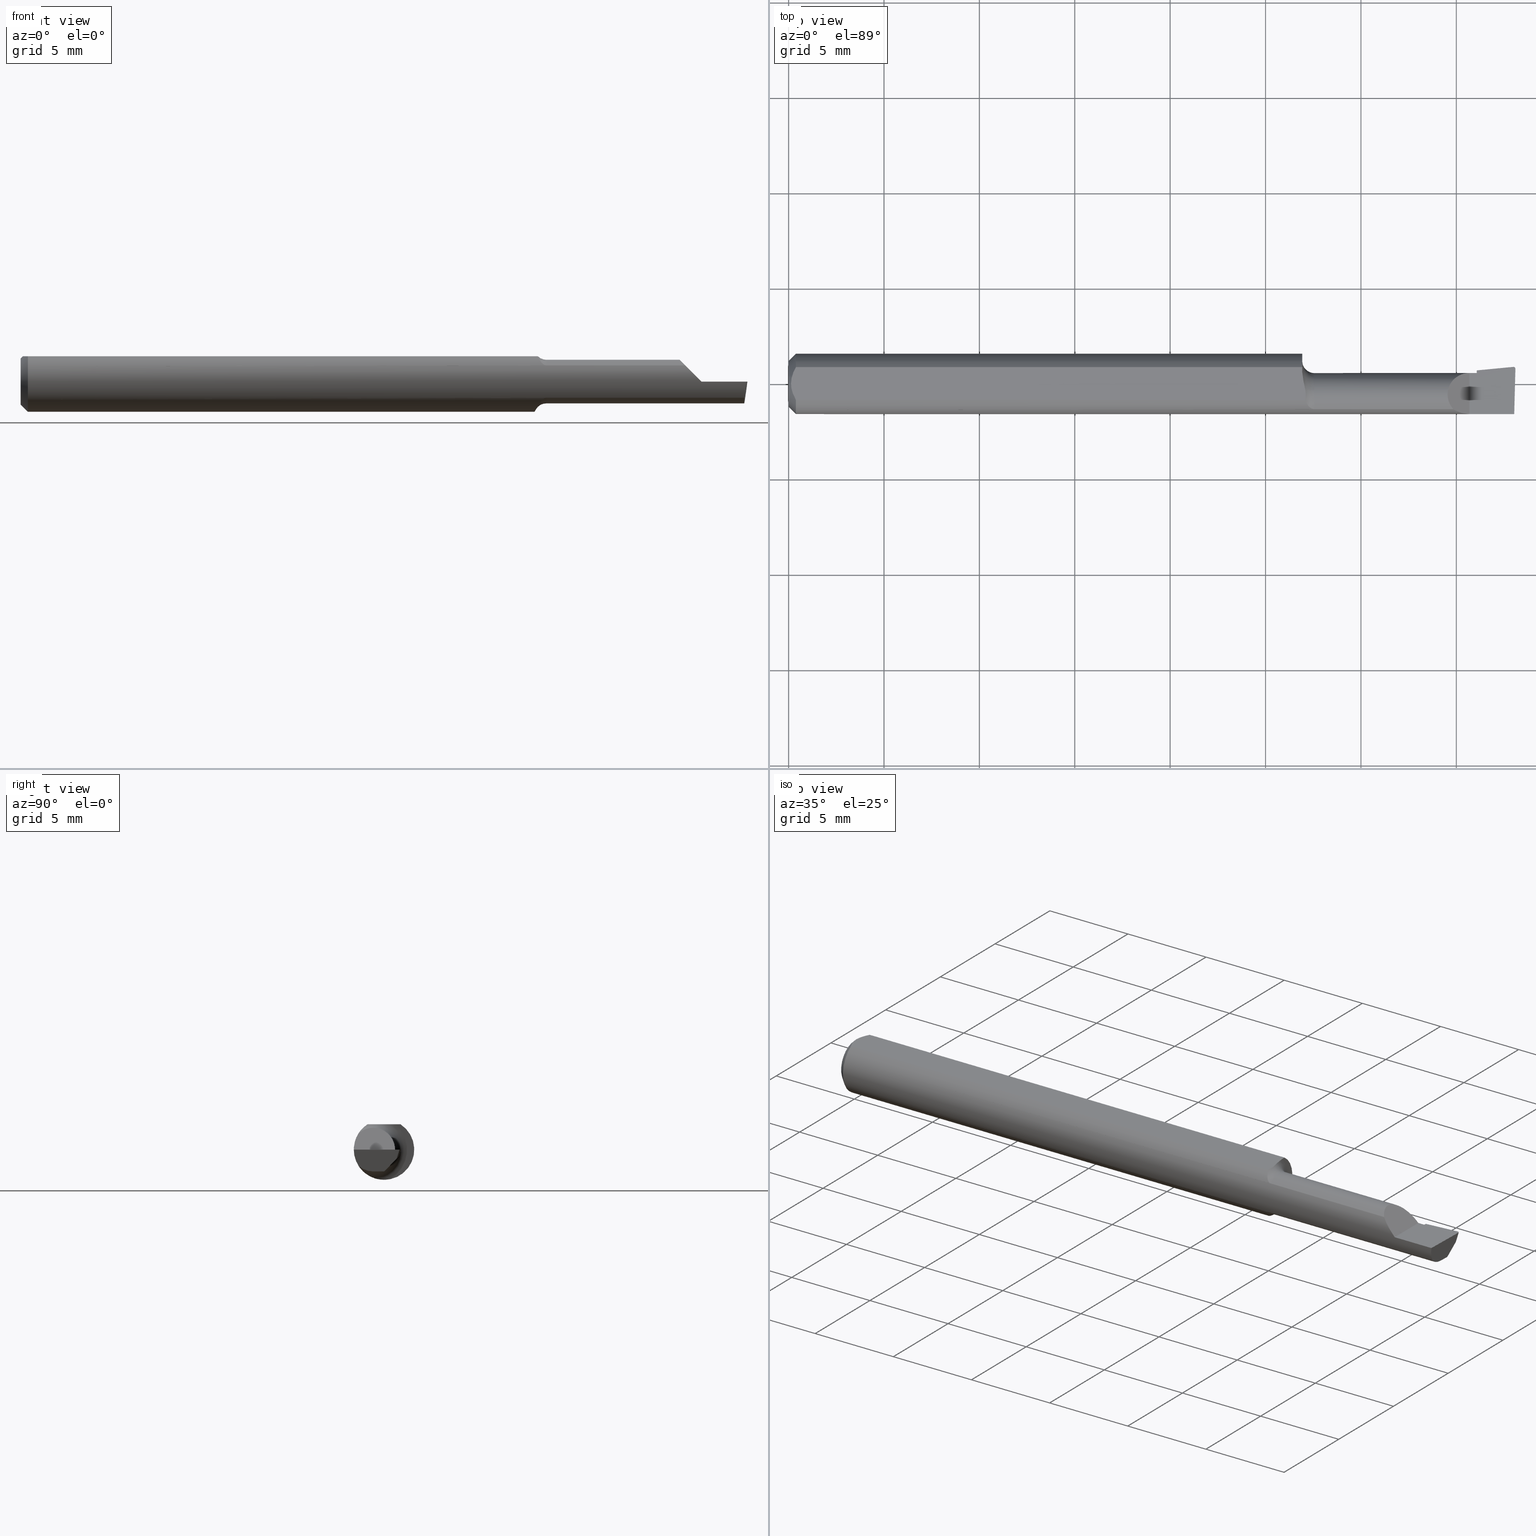
[diagram: canonical four-view strip — front | top / right | iso, engineering-drawing reading convention]
A machine part, canonical four-view strip (front | top / right | iso — engineering-drawing reading convention). The complete STEP part file that produces these views, byte-faithful:
ISO-10303-21;
HEADER;
FILE_DESCRIPTION (( 'STEP AP214' ),
    '1' );
FILE_NAME ('B100400R.STEP',
    '2020-05-08T22:21:55',
    ( '' ),
    ( '' ),
    'SwSTEP 2.0',
    'SolidWorks 2018',
    '' );
FILE_SCHEMA (( 'AUTOMOTIVE_DESIGN' ));
ENDSEC;

DATA;
#1 = DIRECTION ( 'NONE',  ( -1.000000000000000000, -0.0000000000000000000, -0.0000000000000000000 ) ) ;
#2 = CARTESIAN_POINT ( 'NONE',  ( 1.405000000000000249, -0.2500000000000000555, 1.163414459189985436E-17 ) ) ;
#3 = VECTOR ( 'NONE', #328, 39.37007874015748143 ) ;
#4 = AXIS2_PLACEMENT_3D ( 'NONE', #18, #413, #258 ) ;
#5 = DIRECTION ( 'NONE',  ( 0.0000000000000000000, 0.0000000000000000000, 1.000000000000000000 ) ) ;
#6 = CARTESIAN_POINT ( 'NONE',  ( 1.074327038483182450, -0.04799382633214958893, -0.03989142061000427314 ) ) ;
#7 = ORIENTED_EDGE ( 'NONE', *, *, #465, .F. ) ;
#8 = EDGE_CURVE ( 'NONE', #250, #97, #34, .T. ) ;
#9 = CARTESIAN_POINT ( 'NONE',  ( 1.060000000000000275, 0.01155624999999986177, -0.06126969549408177451 ) ) ;
#10 = ADVANCED_FACE ( 'NONE', ( #273 ), #222, .T. ) ;
#11 = EDGE_LOOP ( 'NONE', ( #221, #151, #168, #150, #40 ) ) ;
#12 = DIRECTION ( 'NONE',  ( 0.0000000000000000000, 0.9524855432518783971, -0.3045837978228226883 ) ) ;
#13 = CARTESIAN_POINT ( 'NONE',  ( 1.498384822753108914, 0.03264131821163464287, -0.01250862198832612682 ) ) ;
#14 = CONICAL_SURFACE ( 'NONE', #108, 0.06235000000000000264, 0.7853981633974594923 ) ;
#15 = CARTESIAN_POINT ( 'NONE',  ( 1.074073837407041987, -0.04761084945882111674, 0.04033650601908232020 ) ) ;
#16 = CARTESIAN_POINT ( 'NONE',  ( 1.420000000000000151, -0.02239999999999999630, 0.0000000000000000000 ) ) ;
#17 = AXIS2_PLACEMENT_3D ( 'NONE', #148, #1, #5 ) ;
#18 = CARTESIAN_POINT ( 'NONE',  ( 0.0000000000000000000, 0.0000000000000000000, 0.0000000000000000000 ) ) ;
#19 = FACE_OUTER_BOUND ( 'NONE', #152, .T. ) ;
#20 = DIRECTION ( 'NONE',  ( 0.0000000000000000000, -7.598598113218357399E-17, -1.000000000000000000 ) ) ;
#21 = AXIS2_PLACEMENT_3D ( 'NONE', #450, #36, #610 ) ;
#22 = VECTOR ( 'NONE', #473, 39.37007874015748854 ) ;
#23 = CARTESIAN_POINT ( 'NONE',  ( 0.004999999999989931769, 7.898418181085889318E-16, 0.05235000000000000070 ) ) ;
#24 = EDGE_CURVE ( 'NONE', #335, #188, #344, .T. ) ;
#25 = CARTESIAN_POINT ( 'NONE',  ( 0.01500000000000185039, -0.03386738844380016850, 0.05235000000000000070 ) ) ;
#26 = CARTESIAN_POINT ( 'NONE',  ( 1.371638225962093838, -0.05267366071428578739, 0.03336177403790611951 ) ) ;
#27 = CARTESIAN_POINT ( 'NONE',  ( 0.01216137397042175820, -0.02864146636719541034, 0.05235000000000000070 ) ) ;
#28 = ORIENTED_EDGE ( 'NONE', *, *, #59, .T. ) ;
#29 =( NAMED_UNIT ( * ) PLANE_ANGLE_UNIT ( ) SI_UNIT ( $, .RADIAN. ) );
#30 = B_SPLINE_CURVE_WITH_KNOTS ( 'NONE', 3,
 ( #589, #276, #435, #63, #378, #6, #324, #631, #272, #585, #223, #543, #162, #482 ),
 .UNSPECIFIED., .F., .F.,
 ( 4, 2, 2, 2, 2, 2, 4 ),
 ( 1.960001601931791046E-07, 0.0001315703184465652758, 0.0002629446367329374076, 0.0005256932733056817256, 0.001051190546451170795, 0.001576687819596659648, 0.002102185092742148934 ),
 .UNSPECIFIED. ) ;
#31 = CARTESIAN_POINT ( 'NONE',  ( 1.494045589437458910, 0.03076786057889415241, -0.01400903864505088046 ) ) ;
#32 = ORIENTED_EDGE ( 'NONE', *, *, #629, .F. ) ;
#33 = FILL_AREA_STYLE_COLOUR ( '', #505 ) ;
#34 =( BOUNDED_CURVE ( )  B_SPLINE_CURVE ( 3, ( #363, #670, #327, #48 ),
 .UNSPECIFIED., .F., .F. ) 
 B_SPLINE_CURVE_WITH_KNOTS ( ( 4, 4 ),
 ( 1.953092279228398453, 3.511516179717623309 ),
 .UNSPECIFIED. ) 
 CURVE ( )  GEOMETRIC_REPRESENTATION_ITEM ( )  RATIONAL_B_SPLINE_CURVE ( ( 1.000000000000000000, 0.8076450242550488046, 0.8076450242550488046, 1.000000000000000000 ) ) 
 REPRESENTATION_ITEM ( '' )  );
#35 = CARTESIAN_POINT ( 'NONE',  ( 0.0000000000000000000, -0.03386738844375222768, 0.05234999999999997988 ) ) ;
#36 = DIRECTION ( 'NONE',  ( -1.000000000000000000, -5.691349986800549142E-18, 0.0000000000000000000 ) ) ;
#37 =( CONVERSION_BASED_UNIT ( 'INCH', #64 ) LENGTH_UNIT ( ) NAMED_UNIT ( #661 ) );
#38 = CIRCLE ( 'NONE', #145, 0.04504999999999999283 ) ;
#39 =( GEOMETRIC_REPRESENTATION_CONTEXT ( 3 ) GLOBAL_UNCERTAINTY_ASSIGNED_CONTEXT ( ( #278 ) ) GLOBAL_UNIT_ASSIGNED_CONTEXT ( ( #634, #29, #657 ) ) REPRESENTATION_CONTEXT ( 'NONE', 'WORKASPACE' ) );
#40 = ORIENTED_EDGE ( 'NONE', *, *, #563, .T. ) ;
#41 = VECTOR ( 'NONE', #346, 39.37007874015748143 ) ;
#42 = FACE_OUTER_BOUND ( 'NONE', #296, .T. ) ;
#43 = FILL_AREA_STYLE ('',( #33 ) ) ;
#44 = CARTESIAN_POINT ( 'NONE',  ( 1.510364203804932304, 0.03234793331252790866, -0.01400000000000000376 ) ) ;
#45 = PRODUCT_DEFINITION ( 'UNKNOWN', '', #84, #406 ) ;
#46 = ORIENTED_EDGE ( 'NONE', *, *, #571, .F. ) ;
#47 = ORIENTED_EDGE ( 'NONE', *, *, #429, .F. ) ;
#48 = CARTESIAN_POINT ( 'NONE',  ( 1.496007920276498648, 0.03524764111161341612, 0.0000000000000000000 ) ) ;
#49 = EDGE_CURVE ( 'NONE', #294, #342, #85, .T. ) ;
#50 = CARTESIAN_POINT ( 'NONE',  ( 1.420000000000000151, 0.02265000000000000346, 1.836970198721031660E-16 ) ) ;
#51 = VECTOR ( 'NONE', #203, 39.37007874015748854 ) ;
#52 = VECTOR ( 'NONE', #402, 39.37007874015748854 ) ;
#53 =( BOUNDED_CURVE ( )  B_SPLINE_CURVE ( 3, ( #539, #562, #31, #112 ),
 .UNSPECIFIED., .F., .F. ) 
 B_SPLINE_CURVE_WITH_KNOTS ( ( 4, 4 ),
 ( 3.064097098354602089, 3.156599629463157086 ),
 .UNSPECIFIED. ) 
 CURVE ( )  GEOMETRIC_REPRESENTATION_ITEM ( )  RATIONAL_B_SPLINE_CURVE ( ( 1.000000000000000000, 0.9992870672494015283, 0.9992870672494015283, 1.000000000000000000 ) ) 
 REPRESENTATION_ITEM ( '' )  );
#54 = ORIENTED_EDGE ( 'NONE', *, *, #143, .F. ) ;
#55 = FACE_OUTER_BOUND ( 'NONE', #209, .T. ) ;
#56 = CARTESIAN_POINT ( 'NONE',  ( 1.500000000000000222, -0.2500000000000000555, 0.0000000000000000000 ) ) ;
#57 = AXIS2_PLACEMENT_3D ( 'NONE', #617, #523, #520 ) ;
#58 = DIRECTION ( 'NONE',  ( 1.000000000000000000, 0.0000000000000000000, 0.0000000000000000000 ) ) ;
#59 = EDGE_CURVE ( 'NONE', #97, #104, #197, .T. ) ;
#60 = ORIENTED_EDGE ( 'NONE', *, *, #49, .F. ) ;
#61 = DIRECTION ( 'NONE',  ( -0.7071067811865432429, 0.0000000000000000000, -0.7071067811865517916 ) ) ;
#62 = VERTEX_POINT ( 'NONE', #357 ) ;
#63 = CARTESIAN_POINT ( 'NONE',  ( 1.078775713346482146, -0.05116520334387903574, -0.03564627526859109191 ) ) ;
#64 = LENGTH_MEASURE_WITH_UNIT ( LENGTH_MEASURE( 0.02539999999999999897 ), #660 );
#65 = ADVANCED_FACE ( 'NONE', ( #42 ), #579, .F. ) ;
#66 = DIRECTION ( 'NONE',  ( 1.000000000000000000, 5.691349986800549142E-18, 0.0000000000000000000 ) ) ;
#67 = CARTESIAN_POINT ( 'NONE',  ( 0.01500000000000185039, -0.03386738844380016850, 0.05235000000000000070 ) ) ;
#68 = DIRECTION ( 'NONE',  ( 0.0000000000000000000, -1.000000000000000000, 0.0000000000000000000 ) ) ;
#69 = ORIENTED_EDGE ( 'NONE', *, *, #484, .F. ) ;
#70 = CARTESIAN_POINT ( 'NONE',  ( 1.252500000000000169, -0.05267366071428577351, -0.03336177403790612644 ) ) ;
#71 = ORIENTED_EDGE ( 'NONE', *, *, #376, .F. ) ;
#72 = DIRECTION ( 'NONE',  ( 1.000000000000000000, 5.691349986800549142E-18, 0.0000000000000000000 ) ) ;
#73 = ORIENTED_EDGE ( 'NONE', *, *, #271, .F. ) ;
#74 = AXIS2_PLACEMENT_3D ( 'NONE', #288, #596, #234 ) ;
#75 = VECTOR ( 'NONE', #504, 39.37007874015748143 ) ;
#76 = UNCERTAINTY_MEASURE_WITH_UNIT (LENGTH_MEASURE( 1.000000000000000082E-05 ), #37, 'distance_accuracy_value', 'NONE');
#77 = DIRECTION ( 'NONE',  ( 0.0000000000000000000, -1.000000000000000000, 1.776356839400250465E-15 ) ) ;
#78 = ADVANCED_FACE ( 'NONE', ( #268 ), #88, .T. ) ;
#79 = DIRECTION ( 'NONE',  ( 0.1219104985252538326, 0.0000000000000000000, 0.9925410975618711440 ) ) ;
#80 = CARTESIAN_POINT ( 'NONE',  ( 1.060000000000000275, -0.02239999999999999977, 0.0000000000000000000 ) ) ;
#81 = EDGE_LOOP ( 'NONE', ( #628, #236, #565, #69, #408, #614 ) ) ;
#82 = VERTEX_POINT ( 'NONE', #208 ) ;
#83 = CARTESIAN_POINT ( 'NONE',  ( 1.066182189689074633, -0.03386738844375222074, 0.05235000000000000070 ) ) ;
#84 = PRODUCT_DEFINITION_FORMATION_WITH_SPECIFIED_SOURCE ( 'ANY', '', #131, .NOT_KNOWN. ) ;
#85 = LINE ( 'NONE', #480, #51 ) ;
#86 = CARTESIAN_POINT ( 'NONE',  ( 1.420000000000000151, 0.02794687614419681318, 0.0000000000000000000 ) ) ;
#87 = DIRECTION ( 'NONE',  ( 0.02617694830784707966, 0.9996573249755579260, -3.158139334220691399E-18 ) ) ;
#88 = CYLINDRICAL_SURFACE ( 'NONE', #201, 0.06235000000000000264 ) ;
#89 = SURFACE_SIDE_STYLE ('',( #358 ) ) ;
#90 = PRODUCT_DEFINITION_SHAPE ( 'NONE', 'NONE',  #45 ) ;
#91 = ORIENTED_EDGE ( 'NONE', *, *, #415, .F. ) ;
#92 = CARTESIAN_POINT ( 'NONE',  ( 1.485933158780053276, 0.006882228698993234604, -0.07557081307649682334 ) ) ;
#93 = VERTEX_POINT ( 'NONE', #259 ) ;
#94 = FACE_OUTER_BOUND ( 'NONE', #81, .T. ) ;
#95 = ORIENTED_EDGE ( 'NONE', *, *, #499, .F. ) ;
#96 = VERTEX_POINT ( 'NONE', #414 ) ;
#97 = VERTEX_POINT ( 'NONE', #161 ) ;
#98 = ORIENTED_EDGE ( 'NONE', *, *, #242, .T. ) ;
#99 = CARTESIAN_POINT ( 'NONE',  ( 0.0000000000000000000, 0.03386738844375223462, 0.05234999999999997988 ) ) ;
#100 = EDGE_CURVE ( 'NONE', #481, #93, #668, .T. ) ;
#101 = VERTEX_POINT ( 'NONE', #231 ) ;
#102 =( NAMED_UNIT ( * ) SI_UNIT ( $, .STERADIAN. ) SOLID_ANGLE_UNIT ( ) );
#103 = CARTESIAN_POINT ( 'NONE',  ( 1.496461277308439808, 0.03065349357661050975, -0.01436668378927335489 ) ) ;
#104 = VERTEX_POINT ( 'NONE', #257 ) ;
#105 = PLANE ( 'NONE',  #411 ) ;
#106 = VECTOR ( 'NONE', #196, 39.37007874015748143 ) ;
#107 = DIRECTION ( 'NONE',  ( -5.691349986800549142E-18, 1.000000000000000000, 0.0000000000000000000 ) ) ;
#108 = AXIS2_PLACEMENT_3D ( 'NONE', #381, #58, #509 ) ;
#109 = CARTESIAN_POINT ( 'NONE',  ( 1.494656860756163663, -0.05903713403021957490, -0.02331472336167221548 ) ) ;
#110 = LINE ( 'NONE', #2, #663 ) ;
#111 = DIRECTION ( 'NONE',  ( 0.0000000000000000000, 0.0000000000000000000, 1.000000000000000000 ) ) ;
#112 = CARTESIAN_POINT ( 'NONE',  ( 1.494167560590867749, 0.03076208604347176190, -0.01402709660331437347 ) ) ;
#113 = CARTESIAN_POINT ( 'NONE',  ( 1.420000000000000151, -0.2500000000000000555, 9.797174393178828616E-18 ) ) ;
#114 = CARTESIAN_POINT ( 'NONE',  ( 1.405000000000000249, -0.2500000000000000555, 1.163414459189985436E-17 ) ) ;
#115 = PRODUCT_RELATED_PRODUCT_CATEGORY ( 'part', '', ( #131 ) ) ;
#116 = CARTESIAN_POINT ( 'NONE',  ( 1.493589448587071544, -0.05267366071428577351, -0.03336177403790612644 ) ) ;
#117 = ADVANCED_FACE ( 'NONE', ( #574 ), #269, .T. ) ;
#118 = VERTEX_POINT ( 'NONE', #9 ) ;
#119 = ORIENTED_EDGE ( 'NONE', *, *, #179, .T. ) ;
#120 = ADVANCED_FACE ( 'NONE', ( #303 ), #575, .T. ) ;
#121 = CARTESIAN_POINT ( 'NONE',  ( 1.085000000000000187, -0.02239999999999999977, 0.0000000000000000000 ) ) ;
#122 = CIRCLE ( 'NONE', #391, 0.06235000000000000264 ) ;
#123 = DIRECTION ( 'NONE',  ( -1.000000000000000000, -5.691349986800549142E-18, -0.0000000000000000000 ) ) ;
#124 = CARTESIAN_POINT ( 'NONE',  ( 0.0000000000000000000, 0.0000000000000000000, -0.04734999999999965625 ) ) ;
#125 = ORIENTED_EDGE ( 'NONE', *, *, #371, .F. ) ;
#126 = EDGE_LOOP ( 'NONE', ( #405, #240 ) ) ;
#127 = CARTESIAN_POINT ( 'NONE',  ( 1.495883579913029671, 0.03524764111161342306, 8.532676796529436165E-18 ) ) ;
#128 = AXIS2_PLACEMENT_3D ( 'NONE', #165, #123, #374 ) ;
#129 = CARTESIAN_POINT ( 'NONE',  ( 1.420000000000000151, 0.003839959974368483461, -0.03441620828959359585 ) ) ;
#130 = CARTESIAN_POINT ( 'NONE',  ( 1.067516889514667611, -0.02435447415594420989, 0.05235000000000000070 ) ) ;
#131 = PRODUCT ( 'B100400R', 'B100400R', '', ( #502 ) ) ;
#132 = EDGE_CURVE ( 'NONE', #62, #82, #401, .T. ) ;
#133 = CARTESIAN_POINT ( 'NONE',  ( 1.496007920276498648, 0.03524764111161341612, 0.0000000000000000000 ) ) ;
#134 = CARTESIAN_POINT ( 'NONE',  ( 1.420000000000000151, -0.02239999999999999630, -0.04504999999999998589 ) ) ;
#135 = ORIENTED_EDGE ( 'NONE', *, *, #484, .T. ) ;
#136 = LINE ( 'NONE', #314, #600 ) ;
#137 = CARTESIAN_POINT ( 'NONE',  ( 1.420000000000000151, 0.003839959974368483461, -0.03441620828959359585 ) ) ;
#138 = CARTESIAN_POINT ( 'NONE',  ( 1.497690526998707305, 0.02804183703948721212, -0.01718068703854500057 ) ) ;
#139 = VERTEX_POINT ( 'NONE', #536 ) ;
#140 = DIRECTION ( 'NONE',  ( 5.691349986800549142E-18, -1.000000000000000000, 0.0000000000000000000 ) ) ;
#141 = ORIENTED_EDGE ( 'NONE', *, *, #205, .F. ) ;
#142 =( NAMED_UNIT ( * ) PLANE_ANGLE_UNIT ( ) SI_UNIT ( $, .RADIAN. ) );
#143 = EDGE_CURVE ( 'NONE', #531, #436, #136, .T. ) ;
#144 = VECTOR ( 'NONE', #72, 39.37007874015748143 ) ;
#145 = AXIS2_PLACEMENT_3D ( 'NONE', #593, #233, #551 ) ;
#146 = FACE_OUTER_BOUND ( 'NONE', #204, .T. ) ;
#147 = CARTESIAN_POINT ( 'NONE',  ( 1.494167560590867749, 0.03076208604347176190, -0.01402709660331437347 ) ) ;
#148 = CARTESIAN_POINT ( 'NONE',  ( 0.01500000000000000465, 0.0000000000000000000, 0.0000000000000000000 ) ) ;
#149 = ORIENTED_EDGE ( 'NONE', *, *, #376, .T. ) ;
#150 = ORIENTED_EDGE ( 'NONE', *, *, #24, .T. ) ;
#151 = ORIENTED_EDGE ( 'NONE', *, *, #534, .F. ) ;
#152 = EDGE_LOOP ( 'NONE', ( #500, #537, #649, #260 ) ) ;
#153 =( BOUNDED_CURVE ( )  B_SPLINE_CURVE ( 3, ( #116, #158, #430, #370 ),
 .UNSPECIFIED., .F., .T. ) 
 B_SPLINE_CURVE_WITH_KNOTS ( ( 4, 4 ),
 ( 5.756326750816665339, 6.493234751459597831 ),
 .UNSPECIFIED. ) 
 CURVE ( )  GEOMETRIC_REPRESENTATION_ITEM ( )  RATIONAL_B_SPLINE_CURVE ( ( 1.000000000000000000, 0.9552568590268901705, 0.9552568590268901705, 1.000000000000000000 ) ) 
 REPRESENTATION_ITEM ( '' )  );
#154 = LINE ( 'NONE', #553, #444 ) ;
#155 = CARTESIAN_POINT ( 'NONE',  ( 0.01500000000000000465, 0.0000000000000000000, 0.0000000000000000000 ) ) ;
#156 = VECTOR ( 'NONE', #87, 39.37007874015748854 ) ;
#157 = AXIS2_PLACEMENT_3D ( 'NONE', #334, #194, #569 ) ;
#158 = CARTESIAN_POINT ( 'NONE',  ( 1.492874371667013866, -0.04428776192107813231, -0.04097143695815294584 ) ) ;
#159 = AXIS2_PLACEMENT_3D ( 'NONE', #609, #643, #607 ) ;
#160 = EDGE_CURVE ( 'NONE', #266, #355, #398, .T. ) ;
#161 = CARTESIAN_POINT ( 'NONE',  ( 1.496007920276498648, 0.03524764111161341612, 0.0000000000000000000 ) ) ;
#162 = CARTESIAN_POINT ( 'NONE',  ( 1.059999999999996056, 0.004792881695547039807, -0.06254535345742004426 ) ) ;
#163 = VERTEX_POINT ( 'NONE', #50 ) ;
#164 = ADVANCED_FACE ( 'NONE', ( #247 ), #105, .T. ) ;
#165 = CARTESIAN_POINT ( 'NONE',  ( 1.085000000000000187, -0.02239999999999999630, 0.0000000000000000000 ) ) ;
#166 = EDGE_LOOP ( 'NONE', ( #353, #254, #611, #418, #141, #605, #483, #547 ) ) ;
#167 = DIRECTION ( 'NONE',  ( -1.000000000000000000, -5.691349986800549142E-18, -0.0000000000000000000 ) ) ;
#168 = ORIENTED_EDGE ( 'NONE', *, *, #308, .T. ) ;
#169 = SHAPE_DEFINITION_REPRESENTATION ( #90, #472 ) ;
#170 = DIRECTION ( 'NONE',  ( -0.1240019227988993777, -0.3022330132596629526, -0.9451342385281363834 ) ) ;
#171 = CARTESIAN_POINT ( 'NONE',  ( 1.381685276638327631, -0.05903713403021959572, 0.02331472336167217385 ) ) ;
#172 = CARTESIAN_POINT ( 'NONE',  ( 0.0000000000000000000, -0.02240000000000000324, 0.0000000000000000000 ) ) ;
#173 = CARTESIAN_POINT ( 'NONE',  ( 1.420000000000000151, 0.02442187865123204502, -0.01147666661066421706 ) ) ;
#174 = ORIENTED_EDGE ( 'NONE', *, *, #524, .T. ) ;
#175 = VECTOR ( 'NONE', #170, 39.37007874015748854 ) ;
#176 = DIRECTION ( 'NONE',  ( -1.000000000000000000, 5.691349986800548372E-18, -0.0000000000000000000 ) ) ;
#177 = CIRCLE ( 'NONE', #74, 0.06235000000000000264 ) ;
#178 = CARTESIAN_POINT ( 'NONE',  ( -2.563953169053420290E-19, 0.02264999999999996183, 1.836970198721030427E-16 ) ) ;
#179 = EDGE_CURVE ( 'NONE', #487, #294, #184, .T. ) ;
#180 = CARTESIAN_POINT ( 'NONE',  ( 1.495759144559519527, 0.03524165206609282397, 8.547915732267098835E-18 ) ) ;
#181 = AXIS2_PLACEMENT_3D ( 'NONE', #545, #167, #485 ) ;
#182 = LINE ( 'NONE', #35, #41 ) ;
#183 = CARTESIAN_POINT ( 'NONE',  ( 1.495634880358085672, 0.03522968678441162904, 5.345729797365519968E-19 ) ) ;
#184 = LINE ( 'NONE', #470, #22 ) ;
#185 = CARTESIAN_POINT ( 'NONE',  ( 0.01218518006020415795, 0.02868529347538067639, 0.05235000000000000070 ) ) ;
#186 = DIRECTION ( 'NONE',  ( 1.000000000000000000, 0.0000000000000000000, 0.0000000000000000000 ) ) ;
#187 = CARTESIAN_POINT ( 'NONE',  ( 1.063943373083574784, -0.0009488278625737072997, 0.05234999999999998682 ) ) ;
#188 = VERTEX_POINT ( 'NONE', #67 ) ;
#189 = DIRECTION ( 'NONE',  ( -1.000000000000000000, -0.0000000000000000000, -0.0000000000000000000 ) ) ;
#190 = APPLICATION_PROTOCOL_DEFINITION ( 'draft international standard', 'automotive_design', 1998, #507 ) ;
#191 = ORIENTED_EDGE ( 'NONE', *, *, #599, .T. ) ;
#192 = DIRECTION ( 'NONE',  ( 0.0000000000000000000, -1.000000000000000000, 0.0000000000000000000 ) ) ;
#193 = CARTESIAN_POINT ( 'NONE',  ( 1.499880855614015962, 0.03110005946548963576, 2.797005382439469068E-20 ) ) ;
#194 = DIRECTION ( 'NONE',  ( 2.429359850419095604E-34, 4.268512490100411895E-17, 1.000000000000000000 ) ) ;
#195 = DIRECTION ( 'NONE',  ( -1.000000000000000000, -5.691349986800549142E-18, -0.0000000000000000000 ) ) ;
#196 = DIRECTION ( 'NONE',  ( 1.000000000000000000, 5.691349986800549142E-18, 0.0000000000000000000 ) ) ;
#197 = LINE ( 'NONE', #263, #175 ) ;
#198 = LINE ( 'NONE', #137, #52 ) ;
#199 =( CONVERSION_BASED_UNIT ( 'INCH', #395 ) LENGTH_UNIT ( ) NAMED_UNIT ( #513 ) );
#200 = LINE ( 'NONE', #248, #156 ) ;
#201 = AXIS2_PLACEMENT_3D ( 'NONE', #218, #377, #380 ) ;
#202 = AXIS2_PLACEMENT_3D ( 'NONE', #555, #20, #243 ) ;
#203 = DIRECTION ( 'NONE',  ( -0.1240019227988993777, -0.3022330132596629526, -0.9451342385281363834 ) ) ;
#204 = EDGE_LOOP ( 'NONE', ( #369, #262, #219, #621 ) ) ;
#205 = EDGE_CURVE ( 'NONE', #163, #487, #300, .T. ) ;
#206 = VERTEX_POINT ( 'NONE', #420 ) ;
#207 = EDGE_LOOP ( 'NONE', ( #317, #323, #214, #675, #279, #95, #191, #672, #91, #529, #73, #71 ) ) ;
#208 = CARTESIAN_POINT ( 'NONE',  ( 1.497433779686219379, -0.06235000000000005121, 3.231995301756449018E-19 ) ) ;
#209 = EDGE_LOOP ( 'NONE', ( #588, #98 ) ) ;
#210 = ORIENTED_EDGE ( 'NONE', *, *, #541, .T. ) ;
#211 = EDGE_CURVE ( 'NONE', #62, #206, #459, .T. ) ;
#212 = CIRCLE ( 'NONE', #159, 0.04734999999999965625 ) ;
#213 = AXIS2_PLACEMENT_3D ( 'NONE', #121, #440, #68 ) ;
#214 = ORIENTED_EDGE ( 'NONE', *, *, #284, .T. ) ;
#215 = ORIENTED_EDGE ( 'NONE', *, *, #100, .F. ) ;
#216 = PLANE ( 'NONE',  #627 ) ;
#217 = CARTESIAN_POINT ( 'NONE',  ( 1.420000000000000151, 0.02364685013702385111, -0.01400000000000000376 ) ) ;
#218 = CARTESIAN_POINT ( 'NONE',  ( 0.0000000000000000000, 0.0000000000000000000, 0.0000000000000000000 ) ) ;
#219 = ORIENTED_EDGE ( 'NONE', *, *, #341, .F. ) ;
#220 = EDGE_LOOP ( 'NONE', ( #373, #616, #424, #630, #516, #576 ) ) ;
#221 = ORIENTED_EDGE ( 'NONE', *, *, #253, .F. ) ;
#222 = PLANE ( 'NONE',  #57 ) ;
#223 = CARTESIAN_POINT ( 'NONE',  ( 1.061648092746324767, -0.01564147840104310530, -0.06074236086770339743 ) ) ;
#224 = ADVANCED_FACE ( 'NONE', ( #442 ), #416, .F. ) ;
#225 = PRESENTATION_STYLE_ASSIGNMENT (( #345 ) ) ;
#226 = PLANE ( 'NONE',  #427 ) ;
#227 = ADVANCED_FACE ( 'NONE', ( #604 ), #583, .F. ) ;
#228 = LENGTH_MEASURE_WITH_UNIT ( LENGTH_MEASURE( 0.02539999999999999897 ), #385 );
#229 = ORIENTED_EDGE ( 'NONE', *, *, #49, .T. ) ;
#230 = MANIFOLD_SOLID_BREP ( '501D13B4-941D-4ba7-A33A-58F253D3E656-GAAFaceID16', #287 ) ;
#231 = CARTESIAN_POINT ( 'NONE',  ( 1.371638225962093838, -0.05267366071428578739, 0.03336177403790611951 ) ) ;
#232 =( BOUNDED_CURVE ( )  B_SPLINE_CURVE ( 3, ( #133, #127, #180, #183 ),
 .UNSPECIFIED., .F., .T. ) 
 B_SPLINE_CURVE_WITH_KNOTS ( ( 4, 4 ),
 ( 3.511516179717623309, 3.604018710826139671 ),
 .UNSPECIFIED. ) 
 CURVE ( )  GEOMETRIC_REPRESENTATION_ITEM ( )  RATIONAL_B_SPLINE_CURVE ( ( 1.000000000000000000, 0.9992870672494020834, 0.9992870672494020834, 1.000000000000000000 ) ) 
 REPRESENTATION_ITEM ( '' )  );
#233 = DIRECTION ( 'NONE',  ( -1.000000000000000000, -5.691349986800549142E-18, -0.0000000000000000000 ) ) ;
#234 = DIRECTION ( 'NONE',  ( 0.0000000000000000000, 1.000000000000000000, 0.0000000000000000000 ) ) ;
#235 = B_SPLINE_CURVE_WITH_KNOTS ( 'NONE', 3,
 ( #249, #568, #241, #501, #246, #559, #187, #566, #298, #651, #601, #130, #339, #83 ),
 .UNSPECIFIED., .F., .F.,
 ( 4, 2, 2, 2, 2, 2, 4 ),
 ( 0.008234143088603514474, 0.008591734916881392167, 0.008770530831020331014, 0.008859928788089797835, 0.008949326745159266391, 0.009306918573437142350, 0.009664510401715018309 ),
 .UNSPECIFIED. ) ;
#236 = ORIENTED_EDGE ( 'NONE', *, *, #524, .F. ) ;
#237 = CARTESIAN_POINT ( 'NONE',  ( 0.004999999999999268051, 0.005945714695019511074, 0.05235000000000000070 ) ) ;
#238 = AXIS2_PLACEMENT_3D ( 'NONE', #274, #66, #107 ) ;
#239 = AXIS2_PLACEMENT_3D ( 'NONE', #86, #510, #625 ) ;
#240 = ORIENTED_EDGE ( 'NONE', *, *, #465, .T. ) ;
#241 = CARTESIAN_POINT ( 'NONE',  ( 1.060684336333183486, 0.01400540109987310697, 0.05234999999999998682 ) ) ;
#242 = EDGE_CURVE ( 'NONE', #139, #515, #198, .T. ) ;
#243 = DIRECTION ( 'NONE',  ( 0.0000000000000000000, 1.000000000000000000, -7.598598113218357399E-17 ) ) ;
#244 = CARTESIAN_POINT ( 'NONE',  ( 1.420000000000000151, 0.02794687614419804830, 1.856802933193678953E-16 ) ) ;
#245 = CARTESIAN_POINT ( 'NONE',  ( 1.497745910775796441, 0.001009611647418909817, -0.04504999999999998589 ) ) ;
#246 = CARTESIAN_POINT ( 'NONE',  ( 1.062747134522028736, 0.004017454403653804990, 0.05235000000000000764 ) ) ;
#247 = FACE_OUTER_BOUND ( 'NONE', #455, .T. ) ;
#248 = CARTESIAN_POINT ( 'NONE',  ( 1.492525117049605887, -0.2498042633013223268, 9.154091479201484239E-19 ) ) ;
#249 = CARTESIAN_POINT ( 'NONE',  ( 1.060000000000000275, 0.02414546164772667439, 0.05235000000000000070 ) ) ;
#250 = VERTEX_POINT ( 'NONE', #193 ) ;
#251 = FACE_OUTER_BOUND ( 'NONE', #220, .T. ) ;
#252 =( NAMED_UNIT ( * ) SI_UNIT ( $, .STERADIAN. ) SOLID_ANGLE_UNIT ( ) );
#253 = EDGE_CURVE ( 'NONE', #321, #665, #461, .T. ) ;
#254 = ORIENTED_EDGE ( 'NONE', *, *, #8, .T. ) ;
#255 = AXIS2_PLACEMENT_3D ( 'NONE', #641, #387, #12 ) ;
#256 = FACE_OUTER_BOUND ( 'NONE', #642, .T. ) ;
#257 = CARTESIAN_POINT ( 'NONE',  ( 1.494167560590867749, 0.03076208604347176190, -0.01402709660331437347 ) ) ;
#258 = DIRECTION ( 'NONE',  ( 1.000000000000000000, 0.0000000000000000000, 0.0000000000000000000 ) ) ;
#259 = CARTESIAN_POINT ( 'NONE',  ( 1.497145952778602185, 0.02443421182165933167, -0.02084524377084976537 ) ) ;
#260 = ORIENTED_EDGE ( 'NONE', *, *, #494, .T. ) ;
#261 = CIRCLE ( 'NONE', #540, 0.04504999999999997201 ) ;
#262 = ORIENTED_EDGE ( 'NONE', *, *, #8, .F. ) ;
#263 = CARTESIAN_POINT ( 'NONE',  ( 1.485933158780053276, 0.01069217087200074849, -0.07678914826778811265 ) ) ;
#264 = VECTOR ( 'NONE', #488, 39.37007874015748854 ) ;
#265 = APPLICATION_CONTEXT ( 'automotive_design' ) ;
#266 = VERTEX_POINT ( 'NONE', #412 ) ;
#267 =( GEOMETRIC_REPRESENTATION_CONTEXT ( 3 ) GLOBAL_UNCERTAINTY_ASSIGNED_CONTEXT ( ( #490 ) ) GLOBAL_UNIT_ASSIGNED_CONTEXT ( ( #199, #142, #252 ) ) REPRESENTATION_CONTEXT ( 'NONE', 'WORKASPACE' ) );
#268 = FACE_OUTER_BOUND ( 'NONE', #207, .T. ) ;
#269 = PLANE ( 'NONE',  #238 ) ;
#270 = AXIS2_PLACEMENT_3D ( 'NONE', #80, #195, #192 ) ;
#271 = EDGE_CURVE ( 'NONE', #118, #355, #177, .T. ) ;
#272 = CARTESIAN_POINT ( 'NONE',  ( 1.065988988117221536, -0.03406974560157229048, -0.05264335079965579145 ) ) ;
#273 = FACE_OUTER_BOUND ( 'NONE', #669, .T. ) ;
#274 = CARTESIAN_POINT ( 'NONE',  ( 1.060000000000000275, 0.04764999999999994934, 0.0000000000000000000 ) ) ;
#275 = ORIENTED_EDGE ( 'NONE', *, *, #463, .F. ) ;
#276 = CARTESIAN_POINT ( 'NONE',  ( 1.083240954672475720, -0.05267366071428582208, -0.03336177403790606399 ) ) ;
#277 = ADVANCED_FACE ( 'NONE', ( #331 ), #14, .T. ) ;
#278 = UNCERTAINTY_MEASURE_WITH_UNIT (LENGTH_MEASURE( 1.000000000000000082E-05 ), #634, 'distance_accuracy_value', 'NONE');
#279 = ORIENTED_EDGE ( 'NONE', *, *, #448, .F. ) ;
#280 = DIRECTION ( 'NONE',  ( 1.671023757235065878E-18, -0.2936076258024063468, -0.9559260233253795702 ) ) ;
#281 = CARTESIAN_POINT ( 'NONE',  ( 0.01500000000000000465, 0.0000000000000000000, -0.06235000000000000264 ) ) ;
#282 = CARTESIAN_POINT ( 'NONE',  ( 1.060000000000000275, 0.02414546164772667439, 0.05235000000000000070 ) ) ;
#283 = DIRECTION ( 'NONE',  ( 5.691349986800549913E-18, -1.000000000000000000, 0.0000000000000000000 ) ) ;
#284 = EDGE_CURVE ( 'NONE', #82, #96, #154, .T. ) ;
#285 = LINE ( 'NONE', #178, #144 ) ;
#286 = CARTESIAN_POINT ( 'NONE',  ( 0.004999999999998879473, -0.005957634400466955450, 0.05235000000000000070 ) ) ;
#287 = CLOSED_SHELL ( 'NONE', ( #326, #277, #633, #441, #632, #78, #498, #224, #379, #227, #586, #65, #117, #120, #10, #164, #546, #432, #638 ) ) ;
#288 = CARTESIAN_POINT ( 'NONE',  ( 1.060000000000000275, 0.0000000000000000000, 0.0000000000000000000 ) ) ;
#289 = CARTESIAN_POINT ( 'NONE',  ( 0.01500000000000000465, 0.0000000000000000000, 0.0000000000000000000 ) ) ;
#290 = CARTESIAN_POINT ( 'NONE',  ( 1.493548986703517656, 0.0006054938231419061158, -0.04504999999999997201 ) ) ;
#291 = CARTESIAN_POINT ( 'NONE',  ( 1.510364203804932304, 0.03234793331252790866, -0.01400000000000000376 ) ) ;
#292 = CARTESIAN_POINT ( 'NONE',  ( 1.420000000000000151, -0.006476468102432207663, -0.04504999999999998589 ) ) ;
#293 = DIRECTION ( 'NONE',  ( -0.1240019227988994055, -0.3022330132596630081, -0.9451342385281364944 ) ) ;
#294 = VERTEX_POINT ( 'NONE', #493 ) ;
#295 = CARTESIAN_POINT ( 'NONE',  ( 0.009678036133109307534, -0.02325481837211496039, 0.05235000000000000070 ) ) ;
#296 = EDGE_LOOP ( 'NONE', ( #149, #46, #462, #309, #548 ) ) ;
#297 = ORIENTED_EDGE ( 'NONE', *, *, #253, .T. ) ;
#298 = CARTESIAN_POINT ( 'NONE',  ( 1.064818038875745554, -0.004579228880846305041, 0.05235000000000001458 ) ) ;
#299 = CARTESIAN_POINT ( 'NONE',  ( 1.075661082963681459, -0.04915643512136035759, 0.03841395140597855112 ) ) ;
#300 = LINE ( 'NONE', #113, #619 ) ;
#301 = CIRCLE ( 'NONE', #181, 0.04504999999999999283 ) ;
#302 = CONICAL_SURFACE ( 'NONE', #664, 0.06235000000000000264, 0.7853981633974594923 ) ;
#303 = FACE_OUTER_BOUND ( 'NONE', #544, .T. ) ;
#304 = EDGE_CURVE ( 'NONE', #163, #139, #38, .T. ) ;
#305 = AXIS2_PLACEMENT_3D ( 'NONE', #172, #316, #283 ) ;
#306 = AXIS2_PLACEMENT_3D ( 'NONE', #92, #293, #319 ) ;
#307 = AXIS2_PLACEMENT_3D ( 'NONE', #447, #404, #140 ) ;
#308 = EDGE_CURVE ( 'NONE', #313, #335, #591, .T. ) ;
#309 = ORIENTED_EDGE ( 'NONE', *, *, #499, .T. ) ;
#310 = DIMENSIONAL_EXPONENTS ( 1.000000000000000000, 0.0000000000000000000, 0.0000000000000000000, 0.0000000000000000000, 0.0000000000000000000, 0.0000000000000000000, 0.0000000000000000000 ) ;
#311 = DIRECTION ( 'NONE',  ( 1.000000000000000000, 0.0000000000000000000, 0.0000000000000000000 ) ) ;
#312 = ORIENTED_EDGE ( 'NONE', *, *, #371, .T. ) ;
#313 = VERTEX_POINT ( 'NONE', #124 ) ;
#314 = CARTESIAN_POINT ( 'NONE',  ( 1.500000000000000222, -0.02239999999999999630, -0.04504999999999998589 ) ) ;
#315 = VECTOR ( 'NONE', #397, 39.37007874015748143 ) ;
#316 = DIRECTION ( 'NONE',  ( -1.000000000000000000, -5.691349986800549142E-18, -0.0000000000000000000 ) ) ;
#317 = ORIENTED_EDGE ( 'NONE', *, *, #211, .F. ) ;
#318 = EDGE_CURVE ( 'NONE', #356, #163, #285, .T. ) ;
#319 = DIRECTION ( 'NONE',  ( 0.0000000000000000000, 0.9524855432518783971, -0.3045837978228226883 ) ) ;
#320 = FACE_OUTER_BOUND ( 'NONE', #11, .T. ) ;
#321 = VERTEX_POINT ( 'NONE', #489 ) ;
#322 = CARTESIAN_POINT ( 'NONE',  ( 1.420000000000000151, 0.003839959974368483461, -0.03441620828959359585 ) ) ;
#323 = ORIENTED_EDGE ( 'NONE', *, *, #132, .T. ) ;
#324 = CARTESIAN_POINT ( 'NONE',  ( 1.072612635401776870, -0.04600867268841651869, -0.04219264322731248323 ) ) ;
#325 = ORIENTED_EDGE ( 'NONE', *, *, #573, .T. ) ;
#326 = ADVANCED_FACE ( 'NONE', ( #674 ), #407, .T. ) ;
#327 = CARTESIAN_POINT ( 'NONE',  ( 1.498346190944505052, 0.03524764111161339530, 8.231093924805309265E-18 ) ) ;
#328 = DIRECTION ( 'NONE',  ( -1.000000000000000000, -5.691349986800549142E-18, -0.0000000000000000000 ) ) ;
#329 = CARTESIAN_POINT ( 'NONE',  ( 1.060000000000000275, 0.03386738844375224156, 0.05235000000000000070 ) ) ;
#330 = SURFACE_SIDE_STYLE ('',( #468 ) ) ;
#331 = FACE_OUTER_BOUND ( 'NONE', #658, .T. ) ;
#332 = PLANE ( 'NONE',  #202 ) ;
#333 = VECTOR ( 'NONE', #597, 39.37007874015748854 ) ;
#334 = CARTESIAN_POINT ( 'NONE',  ( 1.500000000000000222, -0.02239999999999999630, -0.04504999999999998589 ) ) ;
#335 = VERTEX_POINT ( 'NONE', #281 ) ;
#336 = EDGE_CURVE ( 'NONE', #479, #206, #578, .T. ) ;
#337 = CARTESIAN_POINT ( 'NONE',  ( 0.004999999999989931769, 7.898418181085889318E-16, 0.05235000000000000070 ) ) ;
#338 = ORIENTED_EDGE ( 'NONE', *, *, #409, .F. ) ;
#339 = CARTESIAN_POINT ( 'NONE',  ( 1.067065763150419899, -0.02914627190158987358, 0.05234999999999998682 ) ) ;
#340 = B_SPLINE_CURVE_WITH_KNOTS ( 'NONE', 3,
 ( #25, #27, #295, #394, #286, #337 ),
 .UNSPECIFIED., .F., .F.,
 ( 4, 2, 4 ),
 ( 0.002133667072902290657, 0.002585433046183636171, 0.003037199019464981685 ),
 .UNSPECIFIED. ) ;
#341 = EDGE_CURVE ( 'NONE', #93, #250, #422, .T. ) ;
#342 = VERTEX_POINT ( 'NONE', #637 ) ;
#343 = CARTESIAN_POINT ( 'NONE',  ( 1.069899083742320345, -0.04251446938472881742, 0.04588310374207918430 ) ) ;
#344 = CIRCLE ( 'NONE', #17, 0.06235000000000000264 ) ;
#345 = SURFACE_STYLE_USAGE ( .BOTH. , #89 ) ;
#346 = DIRECTION ( 'NONE',  ( -1.000000000000000000, -0.0000000000000000000, -0.0000000000000000000 ) ) ;
#347 = PLANE ( 'NONE',  #21 ) ;
#348 =( BOUNDED_CURVE ( )  B_SPLINE_CURVE ( 3, ( #147, #103, #138, #457 ),
 .UNSPECIFIED., .F., .T. ) 
 B_SPLINE_CURVE_WITH_KNOTS ( ( 4, 4 ),
 ( 3.156599629463157086, 4.715023529952364179 ),
 .UNSPECIFIED. ) 
 CURVE ( )  GEOMETRIC_REPRESENTATION_ITEM ( )  RATIONAL_B_SPLINE_CURVE ( ( 1.000000000000000000, 0.8076450242550530234, 0.8076450242550530234, 1.000000000000000000 ) ) 
 REPRESENTATION_ITEM ( '' )  );
#349 = EDGE_LOOP ( 'NONE', ( #467, #174, #626 ) ) ;
#350 = ORIENTED_EDGE ( 'NONE', *, *, #587, .F. ) ;
#351 = VECTOR ( 'NONE', #603, 39.37007874015748143 ) ;
#352 = EDGE_CURVE ( 'NONE', #487, #647, #552, .T. ) ;
#353 = ORIENTED_EDGE ( 'NONE', *, *, #620, .T. ) ;
#354 = EDGE_CURVE ( 'NONE', #96, #101, #471, .T. ) ;
#355 = VERTEX_POINT ( 'NONE', #329 ) ;
#356 = VERTEX_POINT ( 'NONE', #590 ) ;
#357 = CARTESIAN_POINT ( 'NONE',  ( 1.493589448587071544, -0.05267366071428577351, -0.03336177403790612644 ) ) ;
#358 = SURFACE_STYLE_FILL_AREA ( #43 ) ;
#359 =( LENGTH_UNIT ( ) NAMED_UNIT ( * ) SI_UNIT ( $, .METRE. ) );
#360 = DIRECTION ( 'NONE',  ( 0.1053106618241427955, 0.6976485211320179181, 0.7086580314005261894 ) ) ;
#361 = VECTOR ( 'NONE', #360, 39.37007874015748854 ) ;
#362 = DIRECTION ( 'NONE',  ( 0.0000000000000000000, 0.0000000000000000000, -1.000000000000000000 ) ) ;
#363 = CARTESIAN_POINT ( 'NONE',  ( 1.499880855614015962, 0.03110005946548963576, 2.797005382439469068E-20 ) ) ;
#364 = LINE ( 'NONE', #512, #106 ) ;
#365 = VECTOR ( 'NONE', #532, 39.37007874015748143 ) ;
#366 = FILL_AREA_STYLE ('',( #443 ) ) ;
#367 = ORIENTED_EDGE ( 'NONE', *, *, #352, .T. ) ;
#368 = CARTESIAN_POINT ( 'NONE',  ( 1.490592351376191838, -0.04680632761517485724, -0.05901368851803158455 ) ) ;
#369 = ORIENTED_EDGE ( 'NONE', *, *, #59, .F. ) ;
#370 = CARTESIAN_POINT ( 'NONE',  ( 1.492946566646605078, -0.02239999999999999630, -0.04504999999999998589 ) ) ;
#371 = EDGE_CURVE ( 'NONE', #515, #436, #301, .T. ) ;
#372 = EDGE_LOOP ( 'NONE', ( #125, #567, #417 ) ) ;
#373 = ORIENTED_EDGE ( 'NONE', *, *, #100, .T. ) ;
#374 = DIRECTION ( 'NONE',  ( 5.691349986800549142E-18, -1.000000000000000000, 0.0000000000000000000 ) ) ;
#375 = DIRECTION ( 'NONE',  ( -0.7071067811865516806, 0.0000000000000000000, 0.7071067811865431318 ) ) ;
#376 = EDGE_CURVE ( 'NONE', #206, #118, #30, .T. ) ;
#377 = DIRECTION ( 'NONE',  ( -1.000000000000000000, -0.0000000000000000000, -0.0000000000000000000 ) ) ;
#378 = CARTESIAN_POINT ( 'NONE',  ( 1.077568494155622725, -0.05043275970182654888, -0.03668598949093540562 ) ) ;
#379 = ADVANCED_FACE ( 'NONE', ( #256 ), #226, .F. ) ;
#380 = DIRECTION ( 'NONE',  ( 0.0000000000000000000, 0.0000000000000000000, 1.000000000000000000 ) ) ;
#381 = CARTESIAN_POINT ( 'NONE',  ( 0.01500000000000000465, 0.0000000000000000000, 0.0000000000000000000 ) ) ;
#382 = ORIENTED_EDGE ( 'NONE', *, *, #667, .T. ) ;
#383 = SURFACE_STYLE_USAGE ( .BOTH. , #330 ) ;
#384 = CARTESIAN_POINT ( 'NONE',  ( 1.393107270290912858, -0.06235000000000000264, 0.01189272970908752079 ) ) ;
#385 =( LENGTH_UNIT ( ) NAMED_UNIT ( * ) SI_UNIT ( $, .METRE. ) );
#386 = VECTOR ( 'NONE', #538, 39.37007874015748854 ) ;
#387 = DIRECTION ( 'NONE',  ( -0.1240019227988994055, -0.3022330132596630081, -0.9451342385281364944 ) ) ;
#388 = DIRECTION ( 'NONE',  ( 0.7071067811865395791, 0.0000000000000000000, -0.7071067811865554553 ) ) ;
#389 = EDGE_CURVE ( 'NONE', #96, #356, #110, .T. ) ;
#390 = LINE ( 'NONE', #322, #549 ) ;
#391 = AXIS2_PLACEMENT_3D ( 'NONE', #155, #476, #111 ) ;
#392 = DIRECTION ( 'NONE',  ( 1.000000000000000000, 5.691349986800549142E-18, 0.0000000000000000000 ) ) ;
#393 = EDGE_CURVE ( 'NONE', #515, #503, #390, .T. ) ;
#394 = CARTESIAN_POINT ( 'NONE',  ( 0.006057557792978140489, -0.01187252718384441616, 0.05234999999999998682 ) ) ;
#395 = LENGTH_MEASURE_WITH_UNIT ( LENGTH_MEASURE( 0.02539999999999999897 ), #359 );
#396 = CARTESIAN_POINT ( 'NONE',  ( 1.341051366671215384, -0.01896673977657555368, 0.06394863332878404638 ) ) ;
#397 = DIRECTION ( 'NONE',  ( 0.7071067811865395791, 8.659560562355030233E-17, 0.7071067811865554553 ) ) ;
#398 = LINE ( 'NONE', #99, #365 ) ;
#399 = DIRECTION ( 'NONE',  ( 3.962974135542376561E-18, -0.6963153109074922131, -0.7177360153954949196 ) ) ;
#400 = ORIENTED_EDGE ( 'NONE', *, *, #415, .T. ) ;
#401 =( BOUNDED_CURVE ( )  B_SPLINE_CURVE ( 3, ( #624, #109, #528, #525 ),
 .UNSPECIFIED., .F., .F. ) 
 B_SPLINE_CURVE_WITH_KNOTS ( ( 4, 4 ),
 ( 0.7961532496683338955, 1.360746882514885181 ),
 .UNSPECIFIED. ) 
 CURVE ( )  GEOMETRIC_REPRESENTATION_ITEM ( )  RATIONAL_B_SPLINE_CURVE ( ( 1.000000000000000000, 0.9736121104788255654, 0.9736121104788255654, 1.000000000000000000 ) ) 
 REPRESENTATION_ITEM ( '' )  );
#402 = DIRECTION ( 'NONE',  ( 3.962974135542376561E-18, -0.6963153109074922131, -0.7177360153954949196 ) ) ;
#403 = APPLICATION_PROTOCOL_DEFINITION ( 'draft international standard', 'automotive_design', 1998, #265 ) ;
#404 = DIRECTION ( 'NONE',  ( -1.000000000000000000, -5.691349986800549142E-18, 0.0000000000000000000 ) ) ;
#405 = ORIENTED_EDGE ( 'NONE', *, *, #534, .T. ) ;
#406 = PRODUCT_DEFINITION_CONTEXT ( 'detailed design', #507, 'design' ) ;
#407 = CYLINDRICAL_SURFACE ( 'NONE', #255, 0.004000000000000000083 ) ;
#408 = ORIENTED_EDGE ( 'NONE', *, *, #563, .F. ) ;
#409 = EDGE_CURVE ( 'NONE', #62, #531, #153, .T. ) ;
#410 = CYLINDRICAL_SURFACE ( 'NONE', #306, 0.004000000000000000083 ) ;
#411 = AXIS2_PLACEMENT_3D ( 'NONE', #44, #474, #421 ) ;
#412 = CARTESIAN_POINT ( 'NONE',  ( 0.01500000000000000465, 0.03386738844375223462, 0.05234999999999997988 ) ) ;
#413 = DIRECTION ( 'NONE',  ( 0.0000000000000000000, 0.0000000000000000000, 1.000000000000000000 ) ) ;
#414 = CARTESIAN_POINT ( 'NONE',  ( 1.405000000000000249, -0.06235000000000005121, 1.163414459189985436E-17 ) ) ;
#415 = EDGE_CURVE ( 'NONE', #266, #335, #122, .T. ) ;
#416 = PLANE ( 'NONE',  #477 ) ;
#417 = ORIENTED_EDGE ( 'NONE', *, *, #494, .F. ) ;
#418 = ORIENTED_EDGE ( 'NONE', *, *, #179, .F. ) ;
#419 = DIRECTION ( 'NONE',  ( -5.691349986800549142E-18, 1.000000000000000000, 6.969893544162626646E-34 ) ) ;
#420 = CARTESIAN_POINT ( 'NONE',  ( 1.085000000000000187, -0.05267366071428582208, -0.03336177403790606399 ) ) ;
#421 = DIRECTION ( 'NONE',  ( 0.0000000000000000000, 0.6963153109074924352, 0.7177360153954949196 ) ) ;
#422 = LINE ( 'NONE', #550, #264 ) ;
#423 = EDGE_CURVE ( 'NONE', #481, #531, #530, .T. ) ;
#424 = ORIENTED_EDGE ( 'NONE', *, *, #620, .F. ) ;
#425 = CARTESIAN_POINT ( 'NONE',  ( 1.066182189689074633, -0.03386738844375222074, 0.05235000000000000070 ) ) ;
#426 = VERTEX_POINT ( 'NONE', #425 ) ;
#427 = AXIS2_PLACEMENT_3D ( 'NONE', #114, #61, #375 ) ;
#428 = FACE_OUTER_BOUND ( 'NONE', #434, .T. ) ;
#429 = EDGE_CURVE ( 'NONE', #515, #139, #261, .T. ) ;
#430 = CARTESIAN_POINT ( 'NONE',  ( 1.492650040401416689, -0.03372388044486964581, -0.04504999999999998589 ) ) ;
#431 = DIRECTION ( 'NONE',  ( -0.0000000000000000000, 1.000000000000000000, -0.0000000000000000000 ) ) ;
#432 = ADVANCED_FACE ( 'NONE', ( #251 ), #216, .F. ) ;
#433 = CARTESIAN_POINT ( 'NONE',  ( 0.0000000000000000000, 0.0000000000000000000, 0.0000000000000000000 ) ) ;
#434 = EDGE_LOOP ( 'NONE', ( #518, #367, #615, #644 ) ) ;
#435 = CARTESIAN_POINT ( 'NONE',  ( 1.081592203943254615, -0.05228879390856558396, -0.03397671269166894353 ) ) ;
#436 = VERTEX_POINT ( 'NONE', #134 ) ;
#437 = ORIENTED_EDGE ( 'NONE', *, *, #448, .T. ) ;
#438 = DIRECTION ( 'NONE',  ( -1.224646799147353947E-16, 0.0000000000000000000, -1.000000000000000000 ) ) ;
#439 = DIRECTION ( 'NONE',  ( -1.000000000000000000, 0.0000000000000000000, 1.224646799147353947E-16 ) ) ;
#440 = DIRECTION ( 'NONE',  ( -1.000000000000000000, -5.691349986800549142E-18, -0.0000000000000000000 ) ) ;
#441 = ADVANCED_FACE ( 'NONE', ( #662 ), #347, .T. ) ;
#442 = FACE_OUTER_BOUND ( 'NONE', #166, .T. ) ;
#443 = FILL_AREA_STYLE_COLOUR ( '', #445 ) ;
#444 = VECTOR ( 'NONE', #645, 39.37007874015748143 ) ;
#445 = COLOUR_RGB ( '',0.7529411764705882248, 0.7529411764705882248, 0.7529411764705882248 ) ;
#446 = CARTESIAN_POINT ( 'NONE',  ( 0.01500000000000000465, 0.0000000000000000000, -0.06235000000000000264 ) ) ;
#447 = CARTESIAN_POINT ( 'NONE',  ( 1.420000000000000151, 0.02794687614419681318, 0.0000000000000000000 ) ) ;
#448 = EDGE_CURVE ( 'NONE', #479, #101, #364, .T. ) ;
#449 = PLANE ( 'NONE',  #307 ) ;
#450 = CARTESIAN_POINT ( 'NONE',  ( 1.420000000000000151, 0.02794687614419681318, 0.0000000000000000000 ) ) ;
#451 = B_SPLINE_CURVE_WITH_KNOTS ( 'NONE', 3,
 ( #592, #652, #343, #15, #299, #659, #656, #511, #508, #492 ),
 .UNSPECIFIED., .F., .F.,
 ( 4, 2, 2, 2, 4 ),
 ( 3.797231421916798275E-07, 0.0004333373953855909145, 0.0006498162315072879497, 0.0007580556495681328895, 0.0008662950676289779377 ),
 .UNSPECIFIED. ) ;
#452 = ORIENTED_EDGE ( 'NONE', *, *, #389, .T. ) ;
#453 = EDGE_CURVE ( 'NONE', #496, #426, #235, .T. ) ;
#454 = CARTESIAN_POINT ( 'NONE',  ( 1.420000000000000151, -0.001476535193822992769, -0.03989625446711344420 ) ) ;
#455 = EDGE_LOOP ( 'NONE', ( #533, #584, #382, #215, #325, #622, #456, #32 ) ) ;
#456 = ORIENTED_EDGE ( 'NONE', *, *, #242, .F. ) ;
#457 = CARTESIAN_POINT ( 'NONE',  ( 1.497145952778602185, 0.02443421182165933167, -0.02084524377084976537 ) ) ;
#458 = DIRECTION ( 'NONE',  ( 0.0000000000000000000, 0.0000000000000000000, -1.000000000000000000 ) ) ;
#459 = LINE ( 'NONE', #70, #3 ) ;
#460 =( NAMED_UNIT ( * ) PLANE_ANGLE_UNIT ( ) SI_UNIT ( $, .RADIAN. ) );
#461 = LINE ( 'NONE', #466, #315 ) ;
#462 = ORIENTED_EDGE ( 'NONE', *, *, #453, .T. ) ;
#463 = EDGE_CURVE ( 'NONE', #101, #356, #526, .T. ) ;
#464 = VECTOR ( 'NONE', #646, 39.37007874015748854 ) ;
#465 = EDGE_CURVE ( 'NONE', #321, #313, #514, .T. ) ;
#466 = CARTESIAN_POINT ( 'NONE',  ( 0.01500000000000000465, 7.635672792683746671E-18, 0.06235000000000000264 ) ) ;
#467 = ORIENTED_EDGE ( 'NONE', *, *, #271, .T. ) ;
#468 = SURFACE_STYLE_FILL_AREA ( #366 ) ;
#469 = ORIENTED_EDGE ( 'NONE', *, *, #352, .F. ) ;
#470 = CARTESIAN_POINT ( 'NONE',  ( 0.8971276994979847652, -0.02239999999999999977, 7.383056331043944924E-17 ) ) ;
#471 =( BOUNDED_CURVE ( )  B_SPLINE_CURVE ( 3, ( #635, #384, #171, #486 ),
 .UNSPECIFIED., .F., .T. ) 
 B_SPLINE_CURVE_WITH_KNOTS ( ( 4, 4 ),
 ( 4.712388980384689674, 5.276982613231239405 ),
 .UNSPECIFIED. ) 
 CURVE ( )  GEOMETRIC_REPRESENTATION_ITEM ( )  RATIONAL_B_SPLINE_CURVE ( ( 1.000000000000000000, 0.9736121104788257874, 0.9736121104788257874, 1.000000000000000000 ) ) 
 REPRESENTATION_ITEM ( '' )  );
#472 = ADVANCED_BREP_SHAPE_REPRESENTATION ( 'B100400R', ( #230, #4 ), #267 ) ;
#473 = DIRECTION ( 'NONE',  ( 0.9953961983671786307, 0.09584575252022466130, -1.219008768213809603E-16 ) ) ;
#474 = DIRECTION ( 'NONE',  ( -0.06894566448119622548, 0.7160281025913035613, -0.6946583704589933683 ) ) ;
#475 = LINE ( 'NONE', #129, #572 ) ;
#476 = DIRECTION ( 'NONE',  ( -1.000000000000000000, -0.0000000000000000000, -0.0000000000000000000 ) ) ;
#477 = AXIS2_PLACEMENT_3D ( 'NONE', #56, #438, #439 ) ;
#478 = STYLED_ITEM ( 'NONE', ( #225 ), #472 ) ;
#479 = VERTEX_POINT ( 'NONE', #542 ) ;
#480 = CARTESIAN_POINT ( 'NONE',  ( 1.493880948194808544, 0.03095478369585231981, -0.01336835189448975884 ) ) ;
#481 = VERTEX_POINT ( 'NONE', #290 ) ;
#482 = CARTESIAN_POINT ( 'NONE',  ( 1.060000000000000275, 0.01155624999999986177, -0.06126969549408177451 ) ) ;
#483 = ORIENTED_EDGE ( 'NONE', *, *, #389, .F. ) ;
#484 = EDGE_CURVE ( 'NONE', #665, #266, #557, .T. ) ;
#485 = DIRECTION ( 'NONE',  ( 0.0000000000000000000, -1.000000000000000000, 0.0000000000000000000 ) ) ;
#486 = CARTESIAN_POINT ( 'NONE',  ( 1.371638225962093838, -0.05267366071428578739, 0.03336177403790611951 ) ) ;
#487 = VERTEX_POINT ( 'NONE', #244 ) ;
#488 = DIRECTION ( 'NONE',  ( 0.1240019227988993500, 0.3022330132596628971, 0.9451342385281363834 ) ) ;
#489 = CARTESIAN_POINT ( 'NONE',  ( 0.0000000000000000000, 6.717187693324806899E-18, 0.04734999999999965625 ) ) ;
#490 = UNCERTAINTY_MEASURE_WITH_UNIT (LENGTH_MEASURE( 1.000000000000000082E-05 ), #199, 'distance_accuracy_value', 'NONE');
#491 = LINE ( 'NONE', #564, #75 ) ;
#492 = CARTESIAN_POINT ( 'NONE',  ( 1.085000000000000187, -0.05267366071428583596, 0.03336177403790603624 ) ) ;
#493 = CARTESIAN_POINT ( 'NONE',  ( 1.495634880358085672, 0.03522968678441162904, 5.345729797365519968E-19 ) ) ;
#494 = EDGE_CURVE ( 'NONE', #436, #503, #623, .T. ) ;
#495 = ORIENTED_EDGE ( 'NONE', *, *, #354, .F. ) ;
#496 = VERTEX_POINT ( 'NONE', #282 ) ;
#497 = CARTESIAN_POINT ( 'NONE',  ( 0.009669996313769784607, 0.02323004575534281385, 0.05234999999999998682 ) ) ;
#498 = ADVANCED_FACE ( 'NONE', ( #94 ), #332, .F. ) ;
#499 = EDGE_CURVE ( 'NONE', #426, #479, #451, .T. ) ;
#500 = ORIENTED_EDGE ( 'NONE', *, *, #573, .F. ) ;
#501 = CARTESIAN_POINT ( 'NONE',  ( 1.062172826817815663, 0.006508548278878137014, 0.05235000000000000070 ) ) ;
#502 = PRODUCT_CONTEXT ( 'NONE', #265, 'mechanical' ) ;
#503 = VERTEX_POINT ( 'NONE', #292 ) ;
#504 = DIRECTION ( 'NONE',  ( 5.691349986800549142E-18, -1.000000000000000000, 7.598598113218357399E-17 ) ) ;
#505 = COLOUR_RGB ( '',0.7529411764705882248, 0.7529411764705882248, 0.7529411764705882248 ) ;
#506 = CARTESIAN_POINT ( 'NONE',  ( 1.420000000000000151, -0.02239999999999999630, -0.04504999999999998589 ) ) ;
#507 = APPLICATION_CONTEXT ( 'automotive_design' ) ;
#508 = CARTESIAN_POINT ( 'NONE',  ( 1.083537604150741629, -0.05267366071513952114, 0.03336177403655851692 ) ) ;
#509 = DIRECTION ( 'NONE',  ( 0.0000000000000000000, 0.0000000000000000000, -1.000000000000000000 ) ) ;
#510 = DIRECTION ( 'NONE',  ( -1.000000000000000000, -5.691349986800549142E-18, 0.0000000000000000000 ) ) ;
#511 = CARTESIAN_POINT ( 'NONE',  ( 1.082134555967766865, -0.05240678568573016449, 0.03378794548805856557 ) ) ;
#512 = CARTESIAN_POINT ( 'NONE',  ( 1.252500000000000169, -0.05267366071428577351, 0.03336177403790612644 ) ) ;
#513 = DIMENSIONAL_EXPONENTS ( 1.000000000000000000, 0.0000000000000000000, 0.0000000000000000000, 0.0000000000000000000, 0.0000000000000000000, 0.0000000000000000000, 0.0000000000000000000 ) ;
#514 = CIRCLE ( 'NONE', #666, 0.04734999999999965625 ) ;
#515 = VERTEX_POINT ( 'NONE', #454 ) ;
#516 = ORIENTED_EDGE ( 'NONE', *, *, #409, .T. ) ;
#517 = ORIENTED_EDGE ( 'NONE', *, *, #318, .T. ) ;
#518 = ORIENTED_EDGE ( 'NONE', *, *, #205, .T. ) ;
#519 = STYLED_ITEM ( 'NONE', ( #558 ), #230 ) ;
#520 = DIRECTION ( 'NONE',  ( 0.0000000000000000000, 0.2936076258024063468, 0.9559260233253795702 ) ) ;
#521 = PRESENTATION_LAYER_ASSIGNMENT (  '', '', ( #478 ) ) ;
#522 = PLANE ( 'NONE',  #239 ) ;
#523 = DIRECTION ( 'NONE',  ( -0.09165774897393338949, 0.9519021185660613282, -0.2923717047227306076 ) ) ;
#524 = EDGE_CURVE ( 'NONE', #355, #496, #491, .T. ) ;
#525 = CARTESIAN_POINT ( 'NONE',  ( 1.497433779686219379, -0.06235000000000005121, 3.231995301756449018E-19 ) ) ;
#526 =( BOUNDED_CURVE ( )  B_SPLINE_CURVE ( 3, ( #26, #396, #653, #608 ),
 .UNSPECIFIED., .F., .T. ) 
 B_SPLINE_CURVE_WITH_KNOTS ( ( 4, 4 ),
 ( 5.546277306536651963, 7.853981633974482790 ),
 .UNSPECIFIED. ) 
 CURVE ( )  GEOMETRIC_REPRESENTATION_ITEM ( )  RATIONAL_B_SPLINE_CURVE ( ( 1.000000000000000000, 0.6033122017619988453, 0.6033122017619988453, 1.000000000000000000 ) ) 
 REPRESENTATION_ITEM ( '' )  );
#527 = ORIENTED_EDGE ( 'NONE', *, *, #336, .F. ) ;
#528 = CARTESIAN_POINT ( 'NONE',  ( 1.495973035530412831, -0.06235000000000003734, -0.01189272970908753987 ) ) ;
#529 = ORIENTED_EDGE ( 'NONE', *, *, #160, .T. ) ;
#530 = LINE ( 'NONE', #580, #386 ) ;
#531 = VERTEX_POINT ( 'NONE', #594 ) ;
#532 = DIRECTION ( 'NONE',  ( 1.000000000000000000, 0.0000000000000000000, 0.0000000000000000000 ) ) ;
#533 = ORIENTED_EDGE ( 'NONE', *, *, #541, .F. ) ;
#534 = EDGE_CURVE ( 'NONE', #313, #321, #212, .T. ) ;
#535 = VECTOR ( 'NONE', #280, 39.37007874015748143 ) ;
#536 = CARTESIAN_POINT ( 'NONE',  ( 1.420000000000000151, 0.01811171944543688711, -0.01970540757188768421 ) ) ;
#537 = ORIENTED_EDGE ( 'NONE', *, *, #423, .T. ) ;
#538 = DIRECTION ( 'NONE',  ( -0.02617694830784707619, -0.9996573249755579260, 4.246274422243624484E-17 ) ) ;
#539 = CARTESIAN_POINT ( 'NONE',  ( 1.493798075755717214, 0.03075279661035067516, -0.01400000000000000376 ) ) ;
#540 = AXIS2_PLACEMENT_3D ( 'NONE', #16, #392, #77 ) ;
#541 = EDGE_CURVE ( 'NONE', #342, #647, #613, .T. ) ;
#542 = CARTESIAN_POINT ( 'NONE',  ( 1.085000000000000187, -0.05267366071428583596, 0.03336177403790603624 ) ) ;
#543 = CARTESIAN_POINT ( 'NONE',  ( 1.060276440363477235, -0.002103274276245940214, -0.06268864719924564788 ) ) ;
#544 = EDGE_LOOP ( 'NONE', ( #338, #602, #527, #437, #636, #517, #554, #47, #312, #54 ) ) ;
#545 = CARTESIAN_POINT ( 'NONE',  ( 1.420000000000000151, -0.02239999999999999630, 0.0000000000000000000 ) ) ;
#546 = ADVANCED_FACE ( 'NONE', ( #55 ), #449, .F. ) ;
#547 = ORIENTED_EDGE ( 'NONE', *, *, #284, .F. ) ;
#548 = ORIENTED_EDGE ( 'NONE', *, *, #336, .T. ) ;
#549 = VECTOR ( 'NONE', #581, 39.37007874015748854 ) ;
#550 = CARTESIAN_POINT ( 'NONE',  ( 1.500053207916534070, 0.03152013807843880022, 0.001313657550806826340 ) ) ;
#551 = DIRECTION ( 'NONE',  ( 0.0000000000000000000, -1.000000000000000000, 0.0000000000000000000 ) ) ;
#552 = LINE ( 'NONE', #173, #535 ) ;
#553 = CARTESIAN_POINT ( 'NONE',  ( 2.249639673992788601E-32, -0.06234999999999999570, 1.836970198721030427E-16 ) ) ;
#554 = ORIENTED_EDGE ( 'NONE', *, *, #304, .T. ) ;
#555 = CARTESIAN_POINT ( 'NONE',  ( 1.500000000000000222, 0.1123499999999999915, 0.05234999999999998682 ) ) ;
#556 = CARTESIAN_POINT ( 'NONE',  ( 0.01500000000000000465, 0.03386738844375223462, 0.05234999999999997988 ) ) ;
#557 = B_SPLINE_CURVE_WITH_KNOTS ( 'NONE', 3,
 ( #23, #237, #598, #497, #185, #556 ),
 .UNSPECIFIED., .F., .F.,
 ( 4, 2, 4 ),
 ( 0.003037199019464981685, 0.003488061124369676216, 0.003938923229274370746 ),
 .UNSPECIFIED. ) ;
#558 = PRESENTATION_STYLE_ASSIGNMENT (( #383 ) ) ;
#559 = CARTESIAN_POINT ( 'NONE',  ( 1.063640393495457026, 0.0002918085034138360166, 0.05234999999999998682 ) ) ;
#560 = MECHANICAL_DESIGN_GEOMETRIC_PRESENTATION_REPRESENTATION (  '', ( #478 ), #582 ) ;
#561 = DIRECTION ( 'NONE',  ( 0.0000000000000000000, 0.0000000000000000000, 1.000000000000000000 ) ) ;
#562 = CARTESIAN_POINT ( 'NONE',  ( 1.493922339957150847, 0.03076476189203177294, -0.01400000000000001070 ) ) ;
#563 = EDGE_CURVE ( 'NONE', #188, #665, #340, .T. ) ;
#564 = CARTESIAN_POINT ( 'NONE',  ( 1.060000000000000275, 0.1123499999999999915, 0.05234999999999998682 ) ) ;
#565 = ORIENTED_EDGE ( 'NONE', *, *, #160, .F. ) ;
#566 = CARTESIAN_POINT ( 'NONE',  ( 1.064543615195409521, -0.003431463083333101752, 0.05235000000000000764 ) ) ;
#567 = ORIENTED_EDGE ( 'NONE', *, *, #393, .T. ) ;
#568 = CARTESIAN_POINT ( 'NONE',  ( 1.060000000000000275, 0.01903747135664268786, 0.05235000000000000070 ) ) ;
#569 = DIRECTION ( 'NONE',  ( 0.0000000000000000000, -1.000000000000000000, 4.268512490100411895E-17 ) ) ;
#570 = VECTOR ( 'NONE', #388, 39.37007874015748143 ) ;
#571 = EDGE_CURVE ( 'NONE', #496, #118, #595, .T. ) ;
#572 = VECTOR ( 'NONE', #399, 39.37007874015748854 ) ;
#573 = EDGE_CURVE ( 'NONE', #481, #503, #639, .T. ) ;
#574 = FACE_OUTER_BOUND ( 'NONE', #349, .T. ) ;
#575 = CYLINDRICAL_SURFACE ( 'NONE', #305, 0.04504999999999997201 ) ;
#576 = ORIENTED_EDGE ( 'NONE', *, *, #423, .F. ) ;
#577 = ORIENTED_EDGE ( 'NONE', *, *, #655, .F. ) ;
#578 = CIRCLE ( 'NONE', #213, 0.04504999999999995813 ) ;
#579 = TOROIDAL_SURFACE ( 'NONE', #128, 0.07004999999999995952, 0.02500000000000000486 ) ;
#580 = CARTESIAN_POINT ( 'NONE',  ( 1.492951399889240971, -0.02221542591032727582, -0.04504999999999998589 ) ) ;
#581 = DIRECTION ( 'NONE',  ( 3.962974135542376561E-18, -0.6963153109074922131, -0.7177360153954949196 ) ) ;
#582 =( GEOMETRIC_REPRESENTATION_CONTEXT ( 3 ) GLOBAL_UNCERTAINTY_ASSIGNED_CONTEXT ( ( #76 ) ) GLOBAL_UNIT_ASSIGNED_CONTEXT ( ( #37, #460, #102 ) ) REPRESENTATION_CONTEXT ( 'NONE', 'WORKASPACE' ) );
#583 = PLANE ( 'NONE',  #612 ) ;
#584 = ORIENTED_EDGE ( 'NONE', *, *, #655, .T. ) ;
#585 = CARTESIAN_POINT ( 'NONE',  ( 1.062728993423048385, -0.02215482600002538494, -0.05866202889160988809 ) ) ;
#586 = ADVANCED_FACE ( 'NONE', ( #320 ), #302, .T. ) ;
#587 = EDGE_CURVE ( 'NONE', #97, #294, #232, .T. ) ;
#588 = ORIENTED_EDGE ( 'NONE', *, *, #429, .T. ) ;
#589 = CARTESIAN_POINT ( 'NONE',  ( 1.085000000000000187, -0.05267366071428582208, -0.03336177403790606399 ) ) ;
#590 = CARTESIAN_POINT ( 'NONE',  ( 1.405000000000000249, 0.02264999999999992714, 1.163414459189985436E-17 ) ) ;
#591 = LINE ( 'NONE', #446, #570 ) ;
#592 = CARTESIAN_POINT ( 'NONE',  ( 1.066182189689074633, -0.03386738844375222074, 0.05235000000000000070 ) ) ;
#593 = CARTESIAN_POINT ( 'NONE',  ( 1.420000000000000151, -0.02239999999999999630, 0.0000000000000000000 ) ) ;
#594 = CARTESIAN_POINT ( 'NONE',  ( 1.492946566646605078, -0.02239999999999999630, -0.04504999999999998589 ) ) ;
#595 = CIRCLE ( 'NONE', #270, 0.07004999999999995952 ) ;
#596 = DIRECTION ( 'NONE',  ( 1.000000000000000000, 5.691349986800549142E-18, 0.0000000000000000000 ) ) ;
#597 = DIRECTION ( 'NONE',  ( -0.9953961983671800740, -0.09584575252021031166, 0.0000000000000000000 ) ) ;
#598 = CARTESIAN_POINT ( 'NONE',  ( 0.006064493299689842180, 0.01189382783781397189, 0.05235000000000000070 ) ) ;
#599 = EDGE_CURVE ( 'NONE', #426, #188, #182, .T. ) ;
#600 = VECTOR ( 'NONE', #176, 39.37007874015748143 ) ;
#601 = CARTESIAN_POINT ( 'NONE',  ( 1.067029704074272445, -0.01497150789875727889, 0.05235000000000000764 ) ) ;
#602 = ORIENTED_EDGE ( 'NONE', *, *, #211, .T. ) ;
#603 = DIRECTION ( 'NONE',  ( 0.0000000000000000000, 1.000000000000000000, -4.268512490100411895E-17 ) ) ;
#604 = FACE_OUTER_BOUND ( 'NONE', #126, .T. ) ;
#605 = ORIENTED_EDGE ( 'NONE', *, *, #318, .F. ) ;
#606 = DIRECTION ( 'NONE',  ( -0.9922060308645520577, 0.02598182930466753221, 0.1218693434051185409 ) ) ;
#607 = DIRECTION ( 'NONE',  ( 0.0000000000000000000, 0.0000000000000000000, 1.000000000000000000 ) ) ;
#608 = CARTESIAN_POINT ( 'NONE',  ( 1.405000000000000249, 0.02264999999999992714, 1.163414459189985436E-17 ) ) ;
#609 = CARTESIAN_POINT ( 'NONE',  ( 0.0000000000000000000, 0.0000000000000000000, 0.0000000000000000000 ) ) ;
#610 = DIRECTION ( 'NONE',  ( 5.691349986800549142E-18, -1.000000000000000000, 0.0000000000000000000 ) ) ;
#611 = ORIENTED_EDGE ( 'NONE', *, *, #587, .T. ) ;
#612 = AXIS2_PLACEMENT_3D ( 'NONE', #433, #311, #362 ) ;
#613 = LINE ( 'NONE', #291, #333 ) ;
#614 = ORIENTED_EDGE ( 'NONE', *, *, #599, .F. ) ;
#615 = ORIENTED_EDGE ( 'NONE', *, *, #629, .T. ) ;
#616 = ORIENTED_EDGE ( 'NONE', *, *, #341, .T. ) ;
#617 = CARTESIAN_POINT ( 'NONE',  ( 1.509953961983671267, 0.03660845752520201779, 0.0000000000000000000 ) ) ;
#618 = ORIENTED_EDGE ( 'NONE', *, *, #308, .F. ) ;
#619 = VECTOR ( 'NONE', #419, 39.37007874015748143 ) ;
#620 = EDGE_CURVE ( 'NONE', #82, #250, #200, .T. ) ;
#621 = ORIENTED_EDGE ( 'NONE', *, *, #667, .F. ) ;
#622 = ORIENTED_EDGE ( 'NONE', *, *, #393, .F. ) ;
#623 = LINE ( 'NONE', #506, #351 ) ;
#624 = CARTESIAN_POINT ( 'NONE',  ( 1.493589448587071544, -0.05267366071428577351, -0.03336177403790612644 ) ) ;
#625 = DIRECTION ( 'NONE',  ( 5.691349986800549142E-18, -1.000000000000000000, 0.0000000000000000000 ) ) ;
#626 = ORIENTED_EDGE ( 'NONE', *, *, #571, .T. ) ;
#627 = AXIS2_PLACEMENT_3D ( 'NONE', #368, #606, #79 ) ;
#628 = ORIENTED_EDGE ( 'NONE', *, *, #453, .F. ) ;
#629 = EDGE_CURVE ( 'NONE', #647, #139, #475, .T. ) ;
#630 = ORIENTED_EDGE ( 'NONE', *, *, #132, .F. ) ;
#631 = CARTESIAN_POINT ( 'NONE',  ( 1.068132745576696019, -0.03943215935316551901, -0.04868886658133501216 ) ) ;
#632 = ADVANCED_FACE ( 'NONE', ( #19 ), #650, .F. ) ;
#633 = ADVANCED_FACE ( 'NONE', ( #428 ), #522, .T. ) ;
#634 =( CONVERSION_BASED_UNIT ( 'INCH', #228 ) LENGTH_UNIT ( ) NAMED_UNIT ( #310 ) );
#635 = CARTESIAN_POINT ( 'NONE',  ( 1.405000000000000249, -0.06235000000000005121, 1.163414459189985436E-17 ) ) ;
#636 = ORIENTED_EDGE ( 'NONE', *, *, #463, .T. ) ;
#637 = CARTESIAN_POINT ( 'NONE',  ( 1.493798075755717214, 0.03075279661035067516, -0.01400000000000000376 ) ) ;
#638 = ADVANCED_FACE ( 'NONE', ( #146 ), #410, .T. ) ;
#639 = LINE ( 'NONE', #245, #464 ) ;
#640 = PRESENTATION_LAYER_ASSIGNMENT (  '', '', ( #519 ) ) ;
#641 = CARTESIAN_POINT ( 'NONE',  ( 1.485933158780053276, 0.006882228698993234604, -0.07557081307649682334 ) ) ;
#642 = EDGE_LOOP ( 'NONE', ( #275, #495, #452 ) ) ;
#643 = DIRECTION ( 'NONE',  ( -1.000000000000000000, -0.0000000000000000000, -0.0000000000000000000 ) ) ;
#644 = ORIENTED_EDGE ( 'NONE', *, *, #304, .F. ) ;
#645 = DIRECTION ( 'NONE',  ( -1.000000000000000000, -0.0000000000000000000, -0.0000000000000000000 ) ) ;
#646 = DIRECTION ( 'NONE',  ( -0.9953961983671800740, -0.09584575252021031166, 2.116984158397002882E-18 ) ) ;
#647 = VERTEX_POINT ( 'NONE', #217 ) ;
#648 = CARTESIAN_POINT ( 'NONE',  ( 0.0000000000000000000, 0.0000000000000000000, 0.0000000000000000000 ) ) ;
#649 = ORIENTED_EDGE ( 'NONE', *, *, #143, .T. ) ;
#650 = PLANE ( 'NONE',  #157 ) ;
#651 = CARTESIAN_POINT ( 'NONE',  ( 1.066144749454604801, -0.01034308142135323058, 0.05235000000000000764 ) ) ;
#652 = CARTESIAN_POINT ( 'NONE',  ( 1.067873522747514015, -0.03849383661596392919, 0.04935695859860204232 ) ) ;
#653 = CARTESIAN_POINT ( 'NONE',  ( 1.359483931624303699, 0.02264999999999997571, 0.04551606837569584230 ) ) ;
#654 = CARTESIAN_POINT ( 'NONE',  ( 0.004999999999989931769, 7.898418181085889318E-16, 0.05235000000000000070 ) ) ;
#655 = EDGE_CURVE ( 'NONE', #342, #104, #53, .T. ) ;
#656 = CARTESIAN_POINT ( 'NONE',  ( 1.079654899318486461, -0.05157034440792586383, 0.03505133412385297992 ) ) ;
#657 =( NAMED_UNIT ( * ) SI_UNIT ( $, .STERADIAN. ) SOLID_ANGLE_UNIT ( ) );
#658 = EDGE_LOOP ( 'NONE', ( #7, #297, #135, #400, #618 ) ) ;
#659 = CARTESIAN_POINT ( 'NONE',  ( 1.078587721903973895, -0.05102224570557683386, 0.03585204334870999848 ) ) ;
#660 =( LENGTH_UNIT ( ) NAMED_UNIT ( * ) SI_UNIT ( $, .METRE. ) );
#661 = DIMENSIONAL_EXPONENTS ( 1.000000000000000000, 0.0000000000000000000, 0.0000000000000000000, 0.0000000000000000000, 0.0000000000000000000, 0.0000000000000000000, 0.0000000000000000000 ) ;
#662 = FACE_OUTER_BOUND ( 'NONE', #372, .T. ) ;
#663 = VECTOR ( 'NONE', #431, 39.37007874015748143 ) ;
#664 = AXIS2_PLACEMENT_3D ( 'NONE', #289, #186, #458 ) ;
#665 = VERTEX_POINT ( 'NONE', #654 ) ;
#666 = AXIS2_PLACEMENT_3D ( 'NONE', #648, #189, #561 ) ;
#667 = EDGE_CURVE ( 'NONE', #104, #93, #348, .T. ) ;
#668 = LINE ( 'NONE', #13, #361 ) ;
#669 = EDGE_LOOP ( 'NONE', ( #119, #229, #210, #469 ) ) ;
#670 = CARTESIAN_POINT ( 'NONE',  ( 1.499944638786153694, 0.03353584053852151636, 8.035340521517366195E-18 ) ) ;
#671 = EDGE_LOOP ( 'NONE', ( #350, #28, #577, #60 ) ) ;
#672 = ORIENTED_EDGE ( 'NONE', *, *, #24, .F. ) ;
#673 = MECHANICAL_DESIGN_GEOMETRIC_PRESENTATION_REPRESENTATION (  '', ( #519 ), #39 ) ;
#674 = FACE_OUTER_BOUND ( 'NONE', #671, .T. ) ;
#675 = ORIENTED_EDGE ( 'NONE', *, *, #354, .T. ) ;
ENDSEC;
END-ISO-10303-21;
